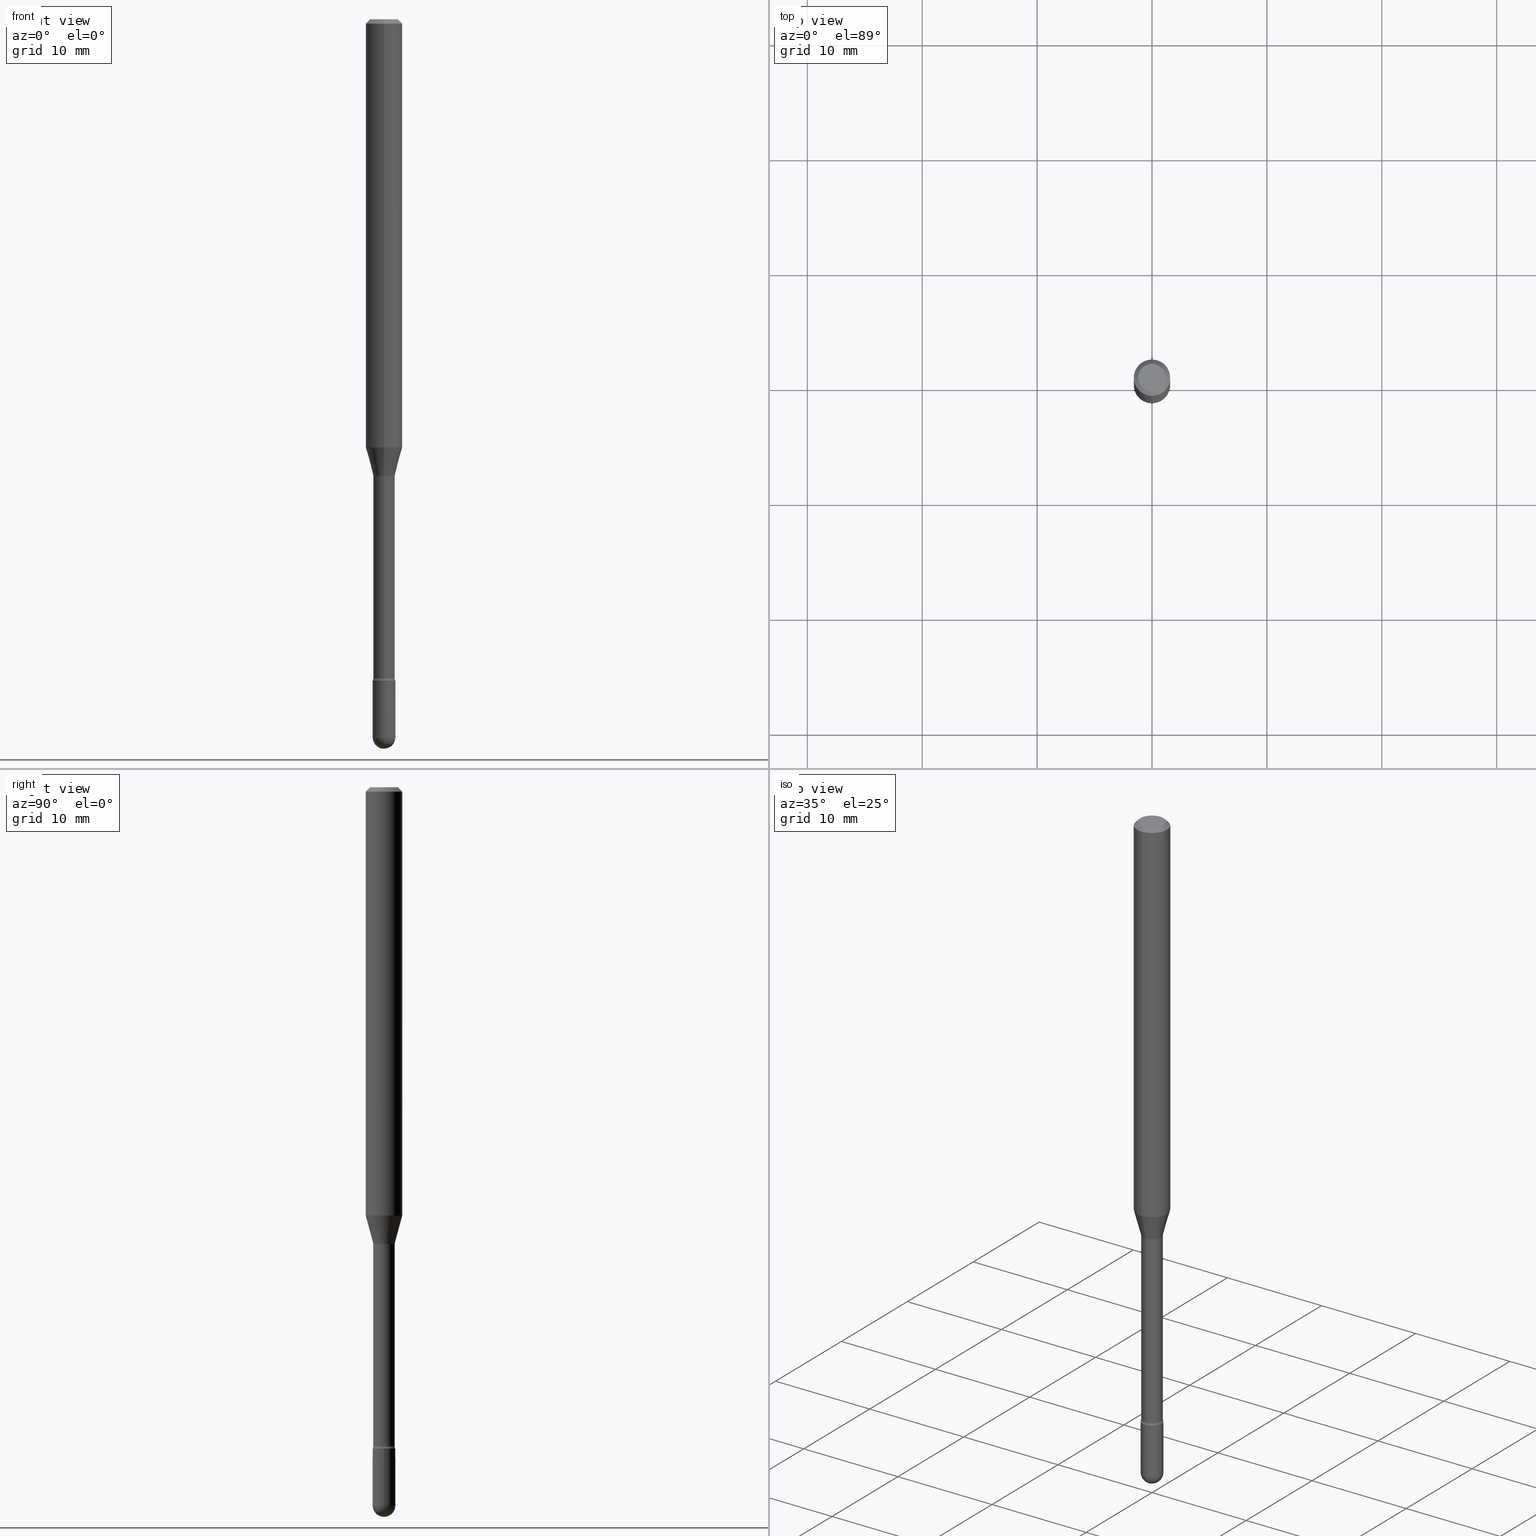
[diagram: canonical four-view strip — front | top / right | iso, engineering-drawing reading convention]
A machine part, canonical four-view strip (front | top / right | iso — engineering-drawing reading convention). The complete STEP part file that produces these views, byte-faithful:
ISO-10303-21;
HEADER;
FILE_DESCRIPTION (( 'STEP AP203' ),
    '1' );
FILE_NAME ('03741.STEP',
    '2024-04-09T20:18:41',
    ( '' ),
    ( '' ),
    'SwSTEP 2.0',
    'SolidWorks 2023',
    '' );
FILE_SCHEMA (( 'CONFIG_CONTROL_DESIGN' ));
ENDSEC;

DATA;
#1 = DIRECTION ( 'NONE',  ( -2.445468806185136597E-29, 3.491481338843145583E-15, 1.000000000000000000 ) ) ;
#2 = PRODUCT ( '03741', '03741', '', ( #494 ) ) ;
#3 = EDGE_LOOP ( 'NONE', ( #380, #106, #82, #499 ) ) ;
#4 = EDGE_CURVE ( 'NONE', #139, #440, #284, .T. ) ;
#5 = DIRECTION ( 'NONE',  ( -6.982962677686265922E-15, -1.000000000000000000, 4.370956789862821150E-15 ) ) ;
#6 = EDGE_LOOP ( 'NONE', ( #399, #476, #140, #217 ) ) ;
#7 = DIRECTION ( 'NONE',  ( 1.000000000000000000, -6.982962677686265922E-15, 4.883557194083112340E-29 ) ) ;
#8 = CIRCLE ( 'NONE', #369, 0.04749999999999999362 ) ;
#9 = CIRCLE ( 'NONE', #323, 0.03900000000000016648 ) ;
#10 = VERTEX_POINT ( 'NONE', #301 ) ;
#11 = DIRECTION ( 'NONE',  ( -6.982962677686265922E-15, -1.000000000000000000, 3.483106191921935554E-15 ) ) ;
#12 = CARTESIAN_POINT ( 'NONE',  ( -3.606700223024410249E-16, -0.05165000000000796038, -2.257939137763241177 ) ) ;
#13 = FACE_OUTER_BOUND ( 'NONE', #408, .T. ) ;
#14 = ADVANCED_FACE ( 'NONE', ( #445 ), #103, .F. ) ;
#15 = DIRECTION ( 'NONE',  ( -6.982962677686265133E-15, -1.000000000000000000, 0.000000000000000000 ) ) ;
#16 = AXIS2_PLACEMENT_3D ( 'NONE', #297, #475, #559 ) ;
#17 = AXIS2_PLACEMENT_3D ( 'NONE', #205, #462, #36 ) ;
#18 = FACE_OUTER_BOUND ( 'NONE', #220, .T. ) ;
#19 = CARTESIAN_POINT ( 'NONE',  ( 6.115339589726740991E-29, -8.726315285849526900E-15, -2.500000000000000000 ) ) ;
#20 = DATE_TIME_ROLE ( 'creation_date' ) ;
#21 = DIRECTION ( 'NONE',  ( -6.982962677686266711E-15, -1.000000000000000000, 3.491526199098709507E-15 ) ) ;
#22 = ADVANCED_FACE ( 'NONE', ( #490 ), #367, .F. ) ;
#23 = DIRECTION ( 'NONE',  ( -2.445437480436105303E-29, 3.491526199098709507E-15, 1.000000000000000000 ) ) ;
#24 = VECTOR ( 'NONE', #52, 39.37007874015748143 ) ;
#25 = AXIS2_PLACEMENT_3D ( 'NONE', #81, #353, #40 ) ;
#26 = CARTESIAN_POINT ( 'NONE',  ( 4.364351673553919652E-16, 0.06249999999999995143, -0.01500000000000030129 ) ) ;
#27 = EDGE_CURVE ( 'NONE', #79, #542, #442, .T. ) ;
#28 = ORIENTED_EDGE ( 'NONE', *, *, #85, .T. ) ;
#29 = CARTESIAN_POINT ( 'NONE',  ( -1.169113584055446105E-44, 1.669184350826100908E-30, 4.780733988912460139E-16 ) ) ;
#30 = CC_DESIGN_PERSON_AND_ORGANIZATION_ASSIGNMENT ( #426, #67, ( #473 ) ) ;
#31 = MANIFOLD_SOLID_BREP ( 'Body-Move/Copy2[2]', #213 ) ;
#32 = DATE_AND_TIME ( #552, #136 ) ;
#33 = DIRECTION ( 'NONE',  ( -2.445437480436105303E-29, 3.491526199098709507E-15, 1.000000000000000000 ) ) ;
#34 = TOROIDAL_SURFACE ( 'NONE', #172, 0.05164999999999999453, 0.01500000000000001679 ) ;
#35 = FACE_OUTER_BOUND ( 'NONE', #562, .T. ) ;
#36 = DIRECTION ( 'NONE',  ( -6.982962677686266711E-15, -1.000000000000000000, 0.000000000000000000 ) ) ;
#37 = ORIENTED_EDGE ( 'NONE', *, *, #259, .T. ) ;
#38 = ORIENTED_EDGE ( 'NONE', *, *, #184, .T. ) ;
#39 = CARTESIAN_POINT ( 'NONE',  ( -3.773273898774340269E-16, -0.04749999999999999362, 8.310259324778261149E-17 ) ) ;
#40 = DIRECTION ( 'NONE',  ( 1.000000000000000000, -6.982962677686258033E-15, 0.000000000000000000 ) ) ;
#41 = VECTOR ( 'NONE', #241, 39.37007874015748143 ) ;
#42 = CC_DESIGN_PERSON_AND_ORGANIZATION_ASSIGNMENT ( #315, #227, ( #2 ) ) ;
#43 = CARTESIAN_POINT ( 'NONE',  ( 3.668156220654178413E-31, -5.237289298648092856E-17, -0.01500000000000008271 ) ) ;
#44 = CARTESIAN_POINT ( 'NONE',  ( 3.829493438681968082E-29, -5.467641997557930663E-15, -1.565974787463811246 ) ) ;
#45 = EDGE_CURVE ( 'NONE', #467, #300, #8, .T. ) ;
#46 = ORIENTED_EDGE ( 'NONE', *, *, #402, .F. ) ;
#47 = CARTESIAN_POINT ( 'NONE',  ( 6.018298732021620914E-29, -8.592535574892981353E-15, -2.460999999999999854 ) ) ;
#48 = AXIS2_PLACEMENT_3D ( 'NONE', #29, #331, #117 ) ;
#49 = ORIENTED_EDGE ( 'NONE', *, *, #252, .F. ) ;
#50 = COORDINATED_UNIVERSAL_TIME_OFFSET ( 5, 0, .BEHIND. ) ;
#51 = CARTESIAN_POINT ( 'NONE',  ( 0.000000000000000000, 0.000000000000000000, 0.000000000000000000 ) ) ;
#52 = DIRECTION ( 'NONE',  ( -2.445468806185136877E-29, 3.491481338843145188E-15, 1.000000000000000000 ) ) ;
#53 = AXIS2_PLACEMENT_3D ( 'NONE', #466, #198, #293 ) ;
#54 = ORIENTED_EDGE ( 'NONE', *, *, #142, .F. ) ;
#55 = DIRECTION ( 'NONE',  ( 2.445437480436104462E-29, -3.491526199098709901E-15, -1.000000000000000000 ) ) ;
#56 = CARTESIAN_POINT ( 'NONE',  ( -1.169113584055446105E-44, 1.669184350826100908E-30, 4.780733988912460139E-16 ) ) ;
#57 = ORIENTED_EDGE ( 'NONE', *, *, #142, .T. ) ;
#58 = APPROVAL ( #489, 'UNSPECIFIED' ) ;
#59 = CC_DESIGN_PERSON_AND_ORGANIZATION_ASSIGNMENT ( #558, #278, ( #473 ) ) ;
#60 = FACE_OUTER_BOUND ( 'NONE', #424, .T. ) ;
#61 = DIRECTION ( 'NONE',  ( -2.445437480436105303E-29, 3.491526199098709507E-15, 1.000000000000000000 ) ) ;
#62 = DESIGN_CONTEXT ( 'detailed design', #365, 'design' ) ;
#63 = SHAPE_DEFINITION_REPRESENTATION ( #309, #373 ) ;
#64 = EDGE_CURVE ( 'NONE', #139, #10, #327, .T. ) ;
#65 = DIRECTION ( 'NONE',  ( -6.982962677686265922E-15, -1.000000000000000000, 3.491526199098708718E-15 ) ) ;
#66 = CONICAL_SURFACE ( 'NONE', #17, 0.03716111260566391100, 0.2617993877991494633 ) ;
#67 = PERSON_AND_ORGANIZATION_ROLE ( 'creator' ) ;
#68 = CARTESIAN_POINT ( 'NONE',  ( 6.018298732021620914E-29, -8.592535574892981353E-15, -2.460999999999999854 ) ) ;
#69 = ADVANCED_FACE ( 'NONE', ( #453 ), #458, .T. ) ;
#70 = COORDINATED_UNIVERSAL_TIME_OFFSET ( 5, 0, .BEHIND. ) ;
#71 = ORIENTED_EDGE ( 'NONE', *, *, #372, .T. ) ;
#72 = DIRECTION ( 'NONE',  ( 1.000000000000000000, -6.982962677686282488E-15, 0.000000000000000000 ) ) ;
#73 = ORIENTED_EDGE ( 'NONE', *, *, #422, .F. ) ;
#74 = APPROVAL_STATUS ( 'not_yet_approved' ) ;
#75 = DIRECTION ( 'NONE',  ( -2.445468806185136877E-29, 3.491481338843145188E-15, 1.000000000000000000 ) ) ;
#76 = ADVANCED_FACE ( 'NONE', ( #191 ), #272, .T. ) ;
#77 = VERTEX_POINT ( 'NONE', #498 ) ;
#78 = AXIS2_PLACEMENT_3D ( 'NONE', #207, #386, #138 ) ;
#79 = VERTEX_POINT ( 'NONE', #548 ) ;
#80 = LINE ( 'NONE', #26, #41 ) ;
#81 = CARTESIAN_POINT ( 'NONE',  ( 5.541432314815520264E-29, -7.911696713818568140E-15, -2.266000000000000014 ) ) ;
#82 = ORIENTED_EDGE ( 'NONE', *, *, #27, .T. ) ;
#83 = ORIENTED_EDGE ( 'NONE', *, *, #27, .F. ) ;
#84 = DIRECTION ( 'NONE',  ( 1.000000000000000000, -6.982962677686258033E-15, 0.000000000000000000 ) ) ;
#85 = EDGE_CURVE ( 'NONE', #152, #393, #277, .T. ) ;
#86 = ORIENTED_EDGE ( 'NONE', *, *, #477, .T. ) ;
#87 = CIRCLE ( 'NONE', #305, 0.06250000000000000000 ) ;
#88 = DIRECTION ( 'NONE',  ( 2.445437480436105303E-29, -3.491526199098709507E-15, -1.000000000000000000 ) ) ;
#89 = DIRECTION ( 'NONE',  ( -2.445437480436105303E-29, 3.491526199098709507E-15, 1.000000000000000000 ) ) ;
#90 = PERSON ( 'UNSPECIFIED', 'UNSPECIFIED', 'UNSPECIFIED', ('UNSPECIFIED'), ('UNSPECIFIED'), ('UNSPECIFIED') ) ;
#91 = CARTESIAN_POINT ( 'NONE',  ( 6.018298732021620914E-29, -8.592535574892981353E-15, -2.460999999999999854 ) ) ;
#92 = UNCERTAINTY_MEASURE_WITH_UNIT (LENGTH_MEASURE( 1.000000000000000082E-05 ), #368, 'distance_accuracy_value', 'NONE');
#93 = PERSON_AND_ORGANIZATION ( #90, #125 ) ;
#94 = VECTOR ( 'NONE', #449, 39.37007874015748143 ) ;
#95 = AXIS2_PLACEMENT_3D ( 'NONE', #264, #448, #223 ) ;
#96 = DIRECTION ( 'NONE',  ( -2.445437480436105303E-29, 3.491526199098709507E-15, 1.000000000000000000 ) ) ;
#97 = CYLINDRICAL_SURFACE ( 'NONE', #460, 0.03665000000000003672 ) ;
#98 = ADVANCED_FACE ( 'NONE', ( #13 ), #97, .T. ) ;
#99 = DIRECTION ( 'NONE',  ( -1.000000000000000000, 6.982962677686265922E-15, -4.883557194083112340E-29 ) ) ;
#100 = ORIENTED_EDGE ( 'NONE', *, *, #4, .F. ) ;
#101 = CARTESIAN_POINT ( 'NONE',  ( -2.594946623866095287E-16, -0.03716111260566937191, -1.562092501787273768 ) ) ;
#102 = DIRECTION ( 'NONE',  ( -2.445437480436105303E-29, 3.491526199098709507E-15, 1.000000000000000000 ) ) ;
#103 = TOROIDAL_SURFACE ( 'NONE', #294, 0.05164999999999999453, 0.01500000000000001679 ) ;
#104 = ORIENTED_EDGE ( 'NONE', *, *, #143, .T. ) ;
#105 = CIRCLE ( 'NONE', #332, 0.03716111260566391100 ) ;
#106 = ORIENTED_EDGE ( 'NONE', *, *, #150, .T. ) ;
#107 = APPLICATION_PROTOCOL_DEFINITION ( 'international standard', 'config_control_design', 1994, #365 ) ;
#108 = CARTESIAN_POINT ( 'NONE',  ( 2.604139126560769297E-16, 0.03665000000000003672, 3.501089636942781913E-16 ) ) ;
#109 = EDGE_CURVE ( 'NONE', #77, #175, #508, .T. ) ;
#110 = DIRECTION ( 'NONE',  ( -2.445437480436105023E-29, 3.491526199098709901E-15, 1.000000000000000000 ) ) ;
#111 = CARTESIAN_POINT ( 'NONE',  ( 3.829542494015149710E-29, -5.467571747528758613E-15, -1.565974787463811246 ) ) ;
#112 = APPROVAL_ROLE ( '' ) ;
#113 = FACE_OUTER_BOUND ( 'NONE', #463, .T. ) ;
#114 = ORIENTED_EDGE ( 'NONE', *, *, #422, .T. ) ;
#115 = CIRCLE ( 'NONE', #433, 0.01500000000000001853 ) ;
#116 = APPROVAL_ROLE ( '' ) ;
#117 = DIRECTION ( 'NONE',  ( -6.982962677686265922E-15, -1.000000000000000000, 3.491526199098708718E-15 ) ) ;
#118 = VERTEX_POINT ( 'NONE', #19 ) ;
#119 = VERTEX_POINT ( 'NONE', #279 ) ;
#120 = DIRECTION ( 'NONE',  ( 1.000000000000000000, -6.982962677686282488E-15, 0.000000000000000000 ) ) ;
#121 = EDGE_CURVE ( 'NONE', #542, #79, #338, .T. ) ;
#122 = ORIENTED_EDGE ( 'NONE', *, *, #402, .T. ) ;
#123 = FACE_OUTER_BOUND ( 'NONE', #307, .T. ) ;
#124 = CIRCLE ( 'NONE', #194, 0.01500000000000001853 ) ;
#125 = ORGANIZATION ( 'UNSPECIFIED', 'UNSPECIFIED', '' ) ;
#126 = LINE ( 'NONE', #247, #482 ) ;
#127 = APPLICATION_CONTEXT ( 'configuration controlled 3d designs of mechanical parts and assemblies' ) ;
#128 = VERTEX_POINT ( 'NONE', #183 ) ;
#129 = CARTESIAN_POINT ( 'NONE',  ( 2.640455861472139653E-16, 0.03716111260565845703, -1.562092501787273768 ) ) ;
#130 = APPROVAL ( #469, 'UNSPECIFIED' ) ;
#131 = DIRECTION ( 'NONE',  ( -1.807323732225324223E-15, -0.2588190451025173533, 0.9659258262890690894 ) ) ;
#132 = ORIENTED_EDGE ( 'NONE', *, *, #159, .T. ) ;
#133 = ORIENTED_EDGE ( 'NONE', *, *, #450, .T. ) ;
#134 = AXIS2_PLACEMENT_3D ( 'NONE', #182, #432, #261 ) ;
#135 = DIRECTION ( 'NONE',  ( 1.839019923739594399E-15, 0.2588190451025241257, 0.9659258262890673130 ) ) ;
#136 = LOCAL_TIME ( 16, 18, 41.00000000000000000, #70 ) ;
#137 = ADVANCED_FACE ( 'NONE', ( #355 ), #536, .T. ) ;
#138 = DIRECTION ( 'NONE',  ( -6.982962677686265922E-15, -1.000000000000000000, 0.000000000000000000 ) ) ;
#139 = VERTEX_POINT ( 'NONE', #314 ) ;
#140 = ORIENTED_EDGE ( 'NONE', *, *, #344, .F. ) ;
#141 = CARTESIAN_POINT ( 'NONE',  ( 3.819999551778803066E-29, -5.454086895405913122E-15, -1.562092501787273768 ) ) ;
#142 = EDGE_CURVE ( 'NONE', #119, #565, #154, .T. ) ;
#143 = EDGE_CURVE ( 'NONE', #440, #413, #234, .T. ) ;
#144 =( LENGTH_UNIT ( ) NAMED_UNIT ( * ) SI_UNIT ( $, .METRE. ) );
#145 = VECTOR ( 'NONE', #412, 39.37007874015748143 ) ;
#146 = VECTOR ( 'NONE', #254, 39.37007874015748143 ) ;
#147 = ORIENTED_EDGE ( 'NONE', *, *, #391, .T. ) ;
#148 = DIRECTION ( 'NONE',  ( -2.445437480436105303E-29, 3.491526199098709507E-15, 1.000000000000000000 ) ) ;
#149 = ORIENTED_EDGE ( 'NONE', *, *, #497, .F. ) ;
#150 = EDGE_CURVE ( 'NONE', #440, #79, #115, .T. ) ;
#151 = FACE_OUTER_BOUND ( 'NONE', #292, .T. ) ;
#152 = VERTEX_POINT ( 'NONE', #539 ) ;
#153 = DIRECTION ( 'NONE',  ( -6.982962677686265922E-15, -1.000000000000000000, 3.491526199098709901E-15 ) ) ;
#154 = CIRCLE ( 'NONE', #390, 0.03716111260566391100 ) ;
#155 = CIRCLE ( 'NONE', #370, 0.03900000000000016648 ) ;
#156 = APPROVAL_PERSON_ORGANIZATION ( #190, #130, #112 ) ;
#157 = APPROVAL_ROLE ( '' ) ;
#158 = DIRECTION ( 'NONE',  ( -6.982962677686264344E-15, -1.000000000000000000, 0.000000000000000000 ) ) ;
#159 = EDGE_CURVE ( 'NONE', #413, #10, #186, .T. ) ;
#160 = CARTESIAN_POINT ( 'NONE',  ( 5.541432314815520264E-29, -7.911696713818568140E-15, -2.266000000000000014 ) ) ;
#161 = PERSON_AND_ORGANIZATION ( #90, #125 ) ;
#162 = AXIS2_PLACEMENT_3D ( 'NONE', #169, #514, #245 ) ;
#163 = AXIS2_PLACEMENT_3D ( 'NONE', #236, #420, #517 ) ;
#164 = ADVANCED_FACE ( 'NONE', ( #151 ), #256, .T. ) ;
#165 = ADVANCED_FACE ( 'NONE', ( #337 ), #560, .T. ) ;
#166 = CARTESIAN_POINT ( 'NONE',  ( 6.018298732021620914E-29, -8.592535574892981353E-15, -2.460999999999999854 ) ) ;
#167 = CARTESIAN_POINT ( 'NONE',  ( -1.169113584055446105E-44, 1.669184350826100908E-30, 4.780733988912460139E-16 ) ) ;
#168 = PRODUCT_DEFINITION ( 'UNKNOWN', '', #473, #62 ) ;
#169 = CARTESIAN_POINT ( 'NONE',  ( 2.023325067251522165E-45, -2.889274369093283992E-31, -8.274490120940608760E-17 ) ) ;
#170 = ORIENTED_EDGE ( 'NONE', *, *, #252, .T. ) ;
#171 = CLOSED_SHELL ( 'NONE', ( #224, #76, #275, #281, #137 ) ) ;
#172 = AXIS2_PLACEMENT_3D ( 'NONE', #173, #258, #523 ) ;
#173 = CARTESIAN_POINT ( 'NONE',  ( 3.829542494015149710E-29, -5.467571747528758613E-15, -1.565974787463811246 ) ) ;
#174 = DIRECTION ( 'NONE',  ( 1.000000000000000000, -6.982962677686282488E-15, 0.000000000000000000 ) ) ;
#175 = VERTEX_POINT ( 'NONE', #387 ) ;
#176 = ORIENTED_EDGE ( 'NONE', *, *, #45, .T. ) ;
#177 = CARTESIAN_POINT ( 'NONE',  ( 2.687627898013134923E-16, 0.03664999999999218189, -2.257939137763241177 ) ) ;
#178 = AXIS2_PLACEMENT_3D ( 'NONE', #311, #88, #396 ) ;
#179 = DIRECTION ( 'NONE',  ( 6.982962677686266711E-15, 1.000000000000000000, 0.000000000000000000 ) ) ;
#180 =( GEOMETRIC_REPRESENTATION_CONTEXT ( 3 ) GLOBAL_UNCERTAINTY_ASSIGNED_CONTEXT ( ( #92 ) ) GLOBAL_UNIT_ASSIGNED_CONTEXT ( ( #368, #543, #406 ) ) REPRESENTATION_CONTEXT ( 'NONE', 'WORKASPACE' ) );
#181 = EDGE_CURVE ( 'NONE', #300, #467, #409, .T. ) ;
#182 = CARTESIAN_POINT ( 'NONE',  ( 5.521648996029813535E-29, -7.883653655470708131E-15, -2.257939137763241177 ) ) ;
#183 = CARTESIAN_POINT ( 'NONE',  ( -2.771116669463794638E-16, -0.03900000000000868744, -2.460999999999999854 ) ) ;
#184 = EDGE_CURVE ( 'NONE', #364, #219, #221, .T. ) ;
#185 = APPROVAL_DATE_TIME ( #188, #58 ) ;
#186 = CIRCLE ( 'NONE', #512, 0.03665000000000000202 ) ;
#187 = CARTESIAN_POINT ( 'NONE',  ( 3.668156220654178413E-31, -5.237289298648092856E-17, -0.01500000000000008271 ) ) ;
#188 = DATE_AND_TIME ( #411, #492 ) ;
#189 = CARTESIAN_POINT ( 'NONE',  ( 5.541361330668214536E-29, -7.911798367157676566E-15, -2.266000000000000014 ) ) ;
#190 = PERSON_AND_ORGANIZATION ( #90, #125 ) ;
#191 = FACE_OUTER_BOUND ( 'NONE', #436, .T. ) ;
#192 = DIRECTION ( 'NONE',  ( -6.982962677686266711E-15, -1.000000000000000000, 0.000000000000000000 ) ) ;
#193 = CARTESIAN_POINT ( 'NONE',  ( -2.559255821372018895E-16, -0.03665000000000003672, 6.060378340882139352E-16 ) ) ;
#194 = AXIS2_PLACEMENT_3D ( 'NONE', #12, #225, #454 ) ;
#195 = VERTEX_POINT ( 'NONE', #520 ) ;
#196 = PLANE ( 'NONE',  #392 ) ;
#197 = ORIENTED_EDGE ( 'NONE', *, *, #121, .T. ) ;
#198 = DIRECTION ( 'NONE',  ( 1.000000000000000000, -7.105427357601001070E-15, 4.926316057921766323E-29 ) ) ;
#199 = ADVANCED_FACE ( 'NONE', ( #123 ), #66, .T. ) ;
#200 = SPHERICAL_SURFACE ( 'NONE', #556, 0.03900000000000016648 ) ;
#201 = CIRCLE ( 'NONE', #271, 0.03900000000000000688 ) ;
#202 = AXIS2_PLACEMENT_3D ( 'NONE', #354, #535, #366 ) ;
#203 = DATE_AND_TIME ( #511, #249 ) ;
#204 = EDGE_CURVE ( 'NONE', #152, #195, #547, .T. ) ;
#205 = CARTESIAN_POINT ( 'NONE',  ( 3.819999551778803066E-29, -5.454086895405913122E-15, -1.562092501787273768 ) ) ;
#206 = MANIFOLD_SOLID_BREP ( 'Body-Move/Copy2[1]', #171 ) ;
#207 = CARTESIAN_POINT ( 'NONE',  ( 5.521648996029813535E-29, -7.883653655470708131E-15, -2.257939137763241177 ) ) ;
#208 = EDGE_CURVE ( 'NONE', #219, #262, #126, .T. ) ;
#209 = CYLINDRICAL_SURFACE ( 'NONE', #48, 0.06250000000000000000 ) ;
#210 = FACE_OUTER_BOUND ( 'NONE', #3, .T. ) ;
#211 = EDGE_LOOP ( 'NONE', ( #122, #298 ) ) ;
#212 = EDGE_CURVE ( 'NONE', #393, #289, #527, .T. ) ;
#213 = CLOSED_SHELL ( 'NONE', ( #14, #165, #439, #164, #69, #506, #199, #282, #485, #518, #22, #546, #98, #474 ) ) ;
#214 = EDGE_LOOP ( 'NONE', ( #351, #83 ) ) ;
#215 = AXIS2_PLACEMENT_3D ( 'NONE', #478, #441, #84 ) ;
#216 = DIRECTION ( 'NONE',  ( -2.445437480436105303E-29, 3.491526199098709507E-15, 1.000000000000000000 ) ) ;
#217 = ORIENTED_EDGE ( 'NONE', *, *, #477, .F. ) ;
#218 = CARTESIAN_POINT ( 'NONE',  ( -2.594946623866095287E-16, -0.03716111260566937191, -1.562092501787273768 ) ) ;
#219 = VERTEX_POINT ( 'NONE', #553 ) ;
#220 = EDGE_LOOP ( 'NONE', ( #430, #176 ) ) ;
#221 = CIRCLE ( 'NONE', #285, 0.03900000000000000688 ) ;
#222 = CARTESIAN_POINT ( 'NONE',  ( 3.588744273923887991E-29, -5.123907175920180791E-15, -1.467526486624344928 ) ) ;
#223 = DIRECTION ( 'NONE',  ( -6.982962677686265133E-15, -1.000000000000000000, 3.491526199098709112E-15 ) ) ;
#224 = ADVANCED_FACE ( 'NONE', ( #35 ), #335, .T. ) ;
#225 = DIRECTION ( 'NONE',  ( -1.000000000000000000, 6.982962677686265922E-15, -4.883557194083112901E-29 ) ) ;
#226 = DIRECTION ( 'NONE',  ( 7.105427357601001859E-15, 1.000000000000000000, 0.000000000000000000 ) ) ;
#227 = PERSON_AND_ORGANIZATION_ROLE ( 'design_owner' ) ;
#228 = AXIS2_PLACEMENT_3D ( 'NONE', #418, #324, #268 ) ;
#229 = CIRCLE ( 'NONE', #357, 0.03900000000000000688 ) ;
#230 = DIRECTION ( 'NONE',  ( -6.982962677686264344E-15, -1.000000000000000000, 0.000000000000000000 ) ) ;
#231 = ORIENTED_EDGE ( 'NONE', *, *, #242, .T. ) ;
#232 = DIRECTION ( 'NONE',  ( -2.445437480436105303E-29, 3.491526199098709507E-15, 1.000000000000000000 ) ) ;
#233 = ORIENTED_EDGE ( 'NONE', *, *, #345, .T. ) ;
#234 = LINE ( 'NONE', #108, #94 ) ;
#235 = ORIENTED_EDGE ( 'NONE', *, *, #344, .T. ) ;
#236 = CARTESIAN_POINT ( 'NONE',  ( -3.606700223024573445E-16, -0.05165000000000546237, -1.565974787463811024 ) ) ;
#237 = AXIS2_PLACEMENT_3D ( 'NONE', #416, #360, #65 ) ;
#238 = CIRCLE ( 'NONE', #503, 0.06250000000000000000 ) ;
#239 = ORIENTED_EDGE ( 'NONE', *, *, #348, .F. ) ;
#240 = DATE_AND_TIME ( #382, #452 ) ;
#241 = DIRECTION ( 'NONE',  ( 4.937700262164548042E-15, 0.7071067811865451302, -0.7071067811865499042 ) ) ;
#242 = EDGE_CURVE ( 'NONE', #565, #10, #333, .T. ) ;
#243 = DIMENSIONAL_EXPONENTS ( 1.000000000000000000, 0.000000000000000000, 0.000000000000000000, 0.000000000000000000, 0.000000000000000000, 0.000000000000000000, 0.000000000000000000 ) ;
#244 = PERSON_AND_ORGANIZATION ( #90, #125 ) ;
#245 = DIRECTION ( 'NONE',  ( -6.982962677686266711E-15, -1.000000000000000000, 3.491526199098709507E-15 ) ) ;
#246 = CC_DESIGN_DATE_AND_TIME_ASSIGNMENT ( #203, #464, ( #483 ) ) ;
#247 = CARTESIAN_POINT ( 'NONE',  ( -0.03899999999999999994, 2.771116669464390721E-16, -1.918384685199413078E-30 ) ) ;
#248 = VECTOR ( 'NONE', #135, 39.37007874015748854 ) ;
#249 = LOCAL_TIME ( 16, 18, 41.00000000000000000, #287 ) ;
#250 = ORIENTED_EDGE ( 'NONE', *, *, #348, .T. ) ;
#251 = CARTESIAN_POINT ( 'NONE',  ( 3.668156220654178413E-31, -5.237289298648092856E-17, -0.01500000000000008271 ) ) ;
#252 = EDGE_CURVE ( 'NONE', #128, #77, #229, .T. ) ;
#253 = ORIENTED_EDGE ( 'NONE', *, *, #372, .F. ) ;
#254 = DIRECTION ( 'NONE',  ( -4.851104656540964275E-15, -0.7071067811865500152, -0.7071067811865450192 ) ) ;
#255 = DIRECTION ( 'NONE',  ( -7.105427357601000281E-15, -1.000000000000000000, 0.000000000000000000 ) ) ;
#256 = CONICAL_SURFACE ( 'NONE', #330, 0.06250000000000000000, 0.7853981633974483900 ) ;
#257 = CIRCLE ( 'NONE', #410, 0.03665000000000000202 ) ;
#258 = DIRECTION ( 'NONE',  ( -2.445437480436105303E-29, 3.491526199098709507E-15, 1.000000000000000000 ) ) ;
#259 = EDGE_CURVE ( 'NONE', #119, #413, #295, .T. ) ;
#260 = CARTESIAN_POINT ( 'NONE',  ( 3.840629472727447874E-16, 0.04749999999999999362, -2.485923956665947867E-16 ) ) ;
#261 = DIRECTION ( 'NONE',  ( -6.982962677686265922E-15, -1.000000000000000000, 0.000000000000000000 ) ) ;
#262 = VERTEX_POINT ( 'NONE', #470 ) ;
#263 = VECTOR ( 'NONE', #131, 39.37007874015748854 ) ;
#264 = CARTESIAN_POINT ( 'NONE',  ( 5.521719727664570921E-29, -7.883552363743941400E-15, -2.257939137763241622 ) ) ;
#265 = DIRECTION ( 'NONE',  ( 6.982962677686265922E-15, 1.000000000000000000, -3.491526199098709901E-15 ) ) ;
#266 = EDGE_CURVE ( 'NONE', #300, #393, #80, .T. ) ;
#267 = CARTESIAN_POINT ( 'NONE',  ( 2.023325067251522165E-45, -2.889274369093283992E-31, -8.274490120940608760E-17 ) ) ;
#268 = DIRECTION ( 'NONE',  ( -6.982962677686265922E-15, -1.000000000000000000, 3.491526199098709901E-15 ) ) ;
#269 = ORIENTED_EDGE ( 'NONE', *, *, #302, .F. ) ;
#270 = PERSON_AND_ORGANIZATION ( #90, #125 ) ;
#271 = AXIS2_PLACEMENT_3D ( 'NONE', #47, #1, #174 ) ;
#272 = SPHERICAL_SURFACE ( 'NONE', #400, 0.03900000000000016648 ) ;
#273 = LOCAL_TIME ( 16, 18, 41.00000000000000000, #538 ) ;
#274 = ORIENTED_EDGE ( 'NONE', *, *, #446, .F. ) ;
#275 = ADVANCED_FACE ( 'NONE', ( #377 ), #196, .T. ) ;
#276 = CARTESIAN_POINT ( 'NONE',  ( -2.723355444297090986E-16, -0.03900000000000791722, -2.266000000000000014 ) ) ;
#277 = LINE ( 'NONE', #405, #145 ) ;
#278 = PERSON_AND_ORGANIZATION_ROLE ( 'design_supplier' ) ;
#279 = CARTESIAN_POINT ( 'NONE',  ( 3.540673979986563113E-16, 0.03716111260565845703, -1.562092501787273768 ) ) ;
#280 = APPROVAL_DATE_TIME ( #32, #130 ) ;
#281 = ADVANCED_FACE ( 'NONE', ( #113 ), #200, .T. ) ;
#282 = ADVANCED_FACE ( 'NONE', ( #557 ), #209, .T. ) ;
#283 = CARTESIAN_POINT ( 'NONE',  ( 6.018298732021620914E-29, -8.592535574892981353E-15, -2.460999999999999854 ) ) ;
#284 = CIRCLE ( 'NONE', #78, 0.03665000000000006447 ) ;
#285 = AXIS2_PLACEMENT_3D ( 'NONE', #166, #291, #72 ) ;
#286 = ORIENTED_EDGE ( 'NONE', *, *, #181, .F. ) ;
#287 = COORDINATED_UNIVERSAL_TIME_OFFSET ( 5, 0, .BEHIND. ) ;
#288 = CARTESIAN_POINT ( 'NONE',  ( -4.364351673553912750E-16, -0.06250000000000005551, -0.01499999999999986587 ) ) ;
#289 = VERTEX_POINT ( 'NONE', #288 ) ;
#290 = SECURITY_CLASSIFICATION_LEVEL ( 'unclassified' ) ;
#291 = DIRECTION ( 'NONE',  ( -2.445468806185136597E-29, 3.491481338843145583E-15, 1.000000000000000000 ) ) ;
#292 = EDGE_LOOP ( 'NONE', ( #361, #133, #71, #516 ) ) ;
#293 = DIRECTION ( 'NONE',  ( 7.105427357600998703E-15, 1.000000000000000000, 0.000000000000000000 ) ) ;
#294 = AXIS2_PLACEMENT_3D ( 'NONE', #111, #480, #551 ) ;
#295 = CIRCLE ( 'NONE', #53, 0.01500000000000001853 ) ;
#296 = APPROVAL_PERSON_ORGANIZATION ( #244, #414, #116 ) ;
#297 = CARTESIAN_POINT ( 'NONE',  ( 0.000000000000000000, 0.000000000000000000, 0.000000000000000000 ) ) ;
#298 = ORIENTED_EDGE ( 'NONE', *, *, #312, .T. ) ;
#299 = DIRECTION ( 'NONE',  ( -6.982962677686266711E-15, -1.000000000000000000, 0.000000000000000000 ) ) ;
#300 = VERTEX_POINT ( 'NONE', #260 ) ;
#301 = CARTESIAN_POINT ( 'NONE',  ( -2.559255821371633339E-16, -0.03665000000000546987, -1.565974787463811246 ) ) ;
#302 = EDGE_CURVE ( 'NONE', #565, #119, #105, .T. ) ;
#303 = FACE_OUTER_BOUND ( 'NONE', #321, .T. ) ;
#304 = AXIS2_PLACEMENT_3D ( 'NONE', #167, #375, #428 ) ;
#305 = AXIS2_PLACEMENT_3D ( 'NONE', #222, #403, #5 ) ;
#306 = CARTESIAN_POINT ( 'NONE',  ( 6.018298732021620914E-29, -8.592535574892981353E-15, -2.460999999999999854 ) ) ;
#307 = EDGE_LOOP ( 'NONE', ( #374, #57, #86, #397 ) ) ;
#308 = ORIENTED_EDGE ( 'NONE', *, *, #450, .F. ) ;
#309 = PRODUCT_DEFINITION_SHAPE ( 'NONE', 'NONE',  #168 ) ;
#310 = DIRECTION ( 'NONE',  ( -2.445437480436105303E-29, 3.491526199098709507E-15, 1.000000000000000000 ) ) ;
#311 = CARTESIAN_POINT ( 'NONE',  ( 3.668156220654178413E-31, -5.237289298648092856E-17, -0.01500000000000008271 ) ) ;
#312 = EDGE_CURVE ( 'NONE', #262, #175, #419, .T. ) ;
#313 = VECTOR ( 'NONE', #358, 39.37007874015748143 ) ;
#314 = CARTESIAN_POINT ( 'NONE',  ( -2.559255821371468665E-16, -0.03665000000000794705, -2.257939137763241177 ) ) ;
#315 = PERSON_AND_ORGANIZATION ( #90, #125 ) ;
#316 = ORIENTED_EDGE ( 'NONE', *, *, #109, .T. ) ;
#317 = CARTESIAN_POINT ( 'NONE',  ( 3.829493438681968082E-29, -5.467641997557930663E-15, -1.565974787463811246 ) ) ;
#318 = CARTESIAN_POINT ( 'NONE',  ( -4.364351673553916201E-16, -0.06250000000000000000, 6.962937863349153827E-16 ) ) ;
#319 = CARTESIAN_POINT ( 'NONE',  ( 0.03899999999999999994, -2.723355444297643682E-16, 1.901708942560414931E-30 ) ) ;
#320 = ORIENTED_EDGE ( 'NONE', *, *, #446, .T. ) ;
#321 = EDGE_LOOP ( 'NONE', ( #308, #286, #465, #383 ) ) ;
#322 = APPLICATION_PROTOCOL_DEFINITION ( 'international standard', 'config_control_design', 1994, #127 ) ;
#323 = AXIS2_PLACEMENT_3D ( 'NONE', #306, #7, #179 ) ;
#324 = DIRECTION ( 'NONE',  ( -2.445437480436104462E-29, 3.491526199098709901E-15, 1.000000000000000000 ) ) ;
#325 = CC_DESIGN_DATE_AND_TIME_ASSIGNMENT ( #415, #20, ( #168 ) ) ;
#326 = EDGE_LOOP ( 'NONE', ( #519, #104, #73, #389 ) ) ;
#327 = LINE ( 'NONE', #193, #502 ) ;
#328 = DIRECTION ( 'NONE',  ( 1.000000000000000000, -6.982962677686265922E-15, 4.876176775795935793E-29 ) ) ;
#329 = PERSON_AND_ORGANIZATION_ROLE ( 'classification_officer' ) ;
#330 = AXIS2_PLACEMENT_3D ( 'NONE', #187, #336, #471 ) ;
#331 = DIRECTION ( 'NONE',  ( -2.445437480436105303E-29, 3.491526199098709507E-15, 1.000000000000000000 ) ) ;
#332 = AXIS2_PLACEMENT_3D ( 'NONE', #484, #487, #299 ) ;
#333 = CIRCLE ( 'NONE', #163, 0.01500000000000001853 ) ;
#334 = ORIENTED_EDGE ( 'NONE', *, *, #204, .T. ) ;
#335 = CYLINDRICAL_SURFACE ( 'NONE', #16, 0.03899999999999999994 ) ;
#336 = DIRECTION ( 'NONE',  ( 2.445437480436105303E-29, -3.491526199098709507E-15, -1.000000000000000000 ) ) ;
#337 = FACE_OUTER_BOUND ( 'NONE', #326, .T. ) ;
#338 = CIRCLE ( 'NONE', #555, 0.03899999999999999994 ) ;
#339 = AXIS2_PLACEMENT_3D ( 'NONE', #398, #310, #530 ) ;
#340 = CC_DESIGN_APPROVAL ( #414, ( #483 ) ) ;
#341 = ORIENTED_EDGE ( 'NONE', *, *, #259, .F. ) ;
#342 = ORIENTED_EDGE ( 'NONE', *, *, #109, .F. ) ;
#343 = CARTESIAN_POINT ( 'NONE',  ( 2.604139126561321500E-16, 0.03664999999999453417, -1.565974787463811246 ) ) ;
#344 = EDGE_CURVE ( 'NONE', #195, #152, #87, .T. ) ;
#345 = EDGE_CURVE ( 'NONE', #219, #128, #513, .T. ) ;
#346 = CARTESIAN_POINT ( 'NONE',  ( 4.440892098500987066E-16, 0.06249999999999995143, -0.01500000000000030129 ) ) ;
#347 = FACE_OUTER_BOUND ( 'NONE', #479, .T. ) ;
#348 = EDGE_CURVE ( 'NONE', #118, #128, #155, .T. ) ;
#349 = CONICAL_SURFACE ( 'NONE', #178, 0.06250000000000000000, 0.7853981633974483900 ) ;
#350 = APPROVAL_PERSON_ORGANIZATION ( #270, #58, #157 ) ;
#351 = ORIENTED_EDGE ( 'NONE', *, *, #121, .F. ) ;
#352 = FACE_OUTER_BOUND ( 'NONE', #6, .T. ) ;
#353 = DIRECTION ( 'NONE',  ( -2.445468806185136597E-29, 3.491481338843145583E-15, 1.000000000000000000 ) ) ;
#354 = CARTESIAN_POINT ( 'NONE',  ( 0.000000000000000000, 0.000000000000000000, 0.000000000000000000 ) ) ;
#355 = FACE_OUTER_BOUND ( 'NONE', #554, .T. ) ;
#356 = AXIS2_PLACEMENT_3D ( 'NONE', #51, #363, #447 ) ;
#357 = AXIS2_PLACEMENT_3D ( 'NONE', #68, #549, #120 ) ;
#358 = DIRECTION ( 'NONE',  ( -2.445437480436105023E-29, 3.491526199098709901E-15, 1.000000000000000000 ) ) ;
#359 = CC_DESIGN_APPROVAL ( #58, ( #168 ) ) ;
#360 = DIRECTION ( 'NONE',  ( -2.445437480436105303E-29, 3.491526199098709507E-15, 1.000000000000000000 ) ) ;
#361 = ORIENTED_EDGE ( 'NONE', *, *, #45, .F. ) ;
#362 = PERSON_AND_ORGANIZATION_ROLE ( 'creator' ) ;
#363 = DIRECTION ( 'NONE',  ( -2.445468806185136597E-29, 3.491481338843145583E-15, 1.000000000000000000 ) ) ;
#364 = VERTEX_POINT ( 'NONE', #564 ) ;
#365 = APPLICATION_CONTEXT ( 'configuration controlled 3d designs of mechanical parts and assemblies' ) ;
#366 = DIRECTION ( 'NONE',  ( 1.000000000000000000, 0.000000000000000000, 0.000000000000000000 ) ) ;
#367 = PLANE ( 'NONE',  #228 ) ;
#368 =( CONVERSION_BASED_UNIT ( 'INCH', #417 ) LENGTH_UNIT ( ) NAMED_UNIT ( #243 ) );
#369 = AXIS2_PLACEMENT_3D ( 'NONE', #267, #102, #21 ) ;
#370 = AXIS2_PLACEMENT_3D ( 'NONE', #91, #437, #255 ) ;
#371 = DIRECTION ( 'NONE',  ( -2.445437480436105303E-29, 3.491526199098709507E-15, 1.000000000000000000 ) ) ;
#372 = EDGE_CURVE ( 'NONE', #289, #393, #238, .T. ) ;
#373 = ADVANCED_BREP_SHAPE_REPRESENTATION ( '03741', ( #206, #31, #202 ), #180 ) ;
#374 = ORIENTED_EDGE ( 'NONE', *, *, #493, .F. ) ;
#375 = DIRECTION ( 'NONE',  ( -2.445437480436105303E-29, 3.491526199098709507E-15, 1.000000000000000000 ) ) ;
#376 = PRODUCT_RELATED_PRODUCT_CATEGORY ( 'detail', '', ( #2 ) ) ;
#377 = FACE_OUTER_BOUND ( 'NONE', #211, .T. ) ;
#378 = ORIENTED_EDGE ( 'NONE', *, *, #85, .F. ) ;
#379 = DIRECTION ( 'NONE',  ( -1.000000000000000000, 6.982962677686265922E-15, -4.883557194083112340E-29 ) ) ;
#380 = ORIENTED_EDGE ( 'NONE', *, *, #391, .F. ) ;
#381 = TOROIDAL_SURFACE ( 'NONE', #339, 0.05165000000000008473, 0.01500000000000002200 ) ;
#382 = CALENDAR_DATE ( 2024, 9, 4 ) ;
#383 = ORIENTED_EDGE ( 'NONE', *, *, #212, .T. ) ;
#384 = DIRECTION ( 'NONE',  ( -6.982962677686265922E-15, -1.000000000000000000, 3.483106191921935554E-15 ) ) ;
#385 = ORIENTED_EDGE ( 'NONE', *, *, #550, .T. ) ;
#386 = DIRECTION ( 'NONE',  ( -2.445437480436105303E-29, 3.491526199098709507E-15, 1.000000000000000000 ) ) ;
#387 = CARTESIAN_POINT ( 'NONE',  ( 0.03899999999999999994, -8.184032258248332163E-15, -2.266000000000000014 ) ) ;
#388 = CARTESIAN_POINT ( 'NONE',  ( 6.018298732021620914E-29, -8.592535574892981353E-15, -2.460999999999999854 ) ) ;
#389 = ORIENTED_EDGE ( 'NONE', *, *, #64, .F. ) ;
#390 = AXIS2_PLACEMENT_3D ( 'NONE', #541, #23, #455 ) ;
#391 = EDGE_CURVE ( 'NONE', #440, #139, #537, .T. ) ;
#392 = AXIS2_PLACEMENT_3D ( 'NONE', #160, #429, #328 ) ;
#393 = VERTEX_POINT ( 'NONE', #346 ) ;
#394 = DIRECTION ( 'NONE',  ( -6.982962677686265133E-15, -1.000000000000000000, 0.000000000000000000 ) ) ;
#395 = EDGE_LOOP ( 'NONE', ( #235, #28, #253, #510 ) ) ;
#396 = DIRECTION ( 'NONE',  ( 6.982962677686265922E-15, 1.000000000000000000, -3.483106191921935554E-15 ) ) ;
#397 = ORIENTED_EDGE ( 'NONE', *, *, #204, .F. ) ;
#398 = CARTESIAN_POINT ( 'NONE',  ( 5.521719727664570921E-29, -7.883552363743941400E-15, -2.257939137763241622 ) ) ;
#399 = ORIENTED_EDGE ( 'NONE', *, *, #302, .T. ) ;
#400 = AXIS2_PLACEMENT_3D ( 'NONE', #545, #99, #505 ) ;
#401 = AXIS2_PLACEMENT_3D ( 'NONE', #388, #431, #481 ) ;
#402 = EDGE_CURVE ( 'NONE', #175, #262, #451, .T. ) ;
#403 = DIRECTION ( 'NONE',  ( -2.445437480436105303E-29, 3.491526199098709507E-15, 1.000000000000000000 ) ) ;
#404 = LINE ( 'NONE', #318, #313 ) ;
#405 = CARTESIAN_POINT ( 'NONE',  ( 4.440892098500625669E-16, 0.06250000000000000000, 2.598530114475767437E-16 ) ) ;
#406 =( NAMED_UNIT ( * ) SI_UNIT ( $, .STERADIAN. ) SOLID_ANGLE_UNIT ( ) );
#407 = CARTESIAN_POINT ( 'NONE',  ( 5.541361330668214536E-29, -7.911798367157676566E-15, -2.266000000000000014 ) ) ;
#408 = EDGE_LOOP ( 'NONE', ( #438, #147, #444, #501 ) ) ;
#409 = CIRCLE ( 'NONE', #162, 0.04749999999999999362 ) ;
#410 = AXIS2_PLACEMENT_3D ( 'NONE', #44, #216, #394 ) ;
#411 = CALENDAR_DATE ( 2024, 9, 4 ) ;
#412 = DIRECTION ( 'NONE',  ( -2.445437480436105023E-29, 3.491526199098709901E-15, 1.000000000000000000 ) ) ;
#413 = VERTEX_POINT ( 'NONE', #343 ) ;
#414 = APPROVAL ( #74, 'UNSPECIFIED' ) ;
#415 = DATE_AND_TIME ( #540, #273 ) ;
#416 = CARTESIAN_POINT ( 'NONE',  ( -1.169113584055446105E-44, 1.669184350826100908E-30, 4.780733988912460139E-16 ) ) ;
#417 = LENGTH_MEASURE_WITH_UNIT ( LENGTH_MEASURE( 0.02539999999999999897 ), #144 );
#418 = CARTESIAN_POINT ( 'NONE',  ( 2.723355444298197364E-16, 0.03899999999999208267, -2.266000000000000014 ) ) ;
#419 = CIRCLE ( 'NONE', #215, 0.03899999999999999994 ) ;
#420 = DIRECTION ( 'NONE',  ( -1.000000000000000000, 6.982962677686265922E-15, -4.883557194083112901E-29 ) ) ;
#421 = CC_DESIGN_APPROVAL ( #130, ( #473 ) ) ;
#422 = EDGE_CURVE ( 'NONE', #10, #413, #257, .T. ) ;
#423 = DIRECTION ( 'NONE',  ( 6.982962677686265922E-15, 1.000000000000000000, 0.000000000000000000 ) ) ;
#424 = EDGE_LOOP ( 'NONE', ( #459, #100, #563, #197 ) ) ;
#425 = DIRECTION ( 'NONE',  ( -6.982962677686265922E-15, -1.000000000000000000, 4.370956789862821150E-15 ) ) ;
#426 = PERSON_AND_ORGANIZATION ( #90, #125 ) ;
#427 = AXIS2_PLACEMENT_3D ( 'NONE', #189, #371, #158 ) ;
#428 = DIRECTION ( 'NONE',  ( -6.982962677686265922E-15, -1.000000000000000000, 3.491526199098709901E-15 ) ) ;
#429 = DIRECTION ( 'NONE',  ( -2.438088387897960049E-29, 3.491481338843145188E-15, 1.000000000000000000 ) ) ;
#430 = ORIENTED_EDGE ( 'NONE', *, *, #181, .T. ) ;
#431 = DIRECTION ( 'NONE',  ( -2.445468806185136597E-29, 3.491481338843145583E-15, 1.000000000000000000 ) ) ;
#432 = DIRECTION ( 'NONE',  ( -2.445437480436105303E-29, 3.491526199098709507E-15, 1.000000000000000000 ) ) ;
#433 = AXIS2_PLACEMENT_3D ( 'NONE', #500, #495, #226 ) ;
#434 = LINE ( 'NONE', #534, #146 ) ;
#435 = ORIENTED_EDGE ( 'NONE', *, *, #208, .T. ) ;
#436 = EDGE_LOOP ( 'NONE', ( #149, #250, #515, #488 ) ) ;
#437 = DIRECTION ( 'NONE',  ( -1.000000000000000000, 7.105427357601001070E-15, -4.926315508542082329E-29 ) ) ;
#438 = ORIENTED_EDGE ( 'NONE', *, *, #143, .F. ) ;
#439 = ADVANCED_FACE ( 'NONE', ( #210 ), #381, .F. ) ;
#440 = VERTEX_POINT ( 'NONE', #177 ) ;
#441 = DIRECTION ( 'NONE',  ( -2.445468806185136597E-29, 3.491481338843145583E-15, 1.000000000000000000 ) ) ;
#442 = CIRCLE ( 'NONE', #427, 0.03899999999999999994 ) ;
#443 = AXIS2_PLACEMENT_3D ( 'NONE', #251, #33, #384 ) ;
#444 = ORIENTED_EDGE ( 'NONE', *, *, #64, .T. ) ;
#445 = FACE_OUTER_BOUND ( 'NONE', #525, .T. ) ;
#446 = EDGE_CURVE ( 'NONE', #77, #364, #201, .T. ) ;
#447 = DIRECTION ( 'NONE',  ( 1.000000000000000000, -6.982962677686265922E-15, 4.876176775795935793E-29 ) ) ;
#448 = DIRECTION ( 'NONE',  ( -2.445437480436105303E-29, 3.491526199098709507E-15, 1.000000000000000000 ) ) ;
#449 = DIRECTION ( 'NONE',  ( -2.445437480436105023E-29, 3.491526199098709901E-15, 1.000000000000000000 ) ) ;
#450 = EDGE_CURVE ( 'NONE', #467, #289, #434, .T. ) ;
#451 = CIRCLE ( 'NONE', #25, 0.03899999999999999994 ) ;
#452 = LOCAL_TIME ( 16, 18, 41.00000000000000000, #457 ) ;
#453 = FACE_OUTER_BOUND ( 'NONE', #395, .T. ) ;
#454 = DIRECTION ( 'NONE',  ( -6.982962677686267499E-15, -1.000000000000000000, 0.000000000000000000 ) ) ;
#455 = DIRECTION ( 'NONE',  ( -6.982962677686266711E-15, -1.000000000000000000, 0.000000000000000000 ) ) ;
#456 = ORIENTED_EDGE ( 'NONE', *, *, #212, .F. ) ;
#457 = COORDINATED_UNIVERSAL_TIME_OFFSET ( 5, 0, .BEHIND. ) ;
#458 = CYLINDRICAL_SURFACE ( 'NONE', #237, 0.06250000000000000000 ) ;
#459 = ORIENTED_EDGE ( 'NONE', *, *, #150, .F. ) ;
#460 = AXIS2_PLACEMENT_3D ( 'NONE', #56, #148, #153 ) ;
#461 = AXIS2_PLACEMENT_3D ( 'NONE', #521, #509, #425 ) ;
#462 = DIRECTION ( 'NONE',  ( -2.445437480436105303E-29, 3.491526199098709507E-15, 1.000000000000000000 ) ) ;
#463 = EDGE_LOOP ( 'NONE', ( #239, #529, #274, #49 ) ) ;
#464 = DATE_TIME_ROLE ( 'classification_date' ) ;
#465 = ORIENTED_EDGE ( 'NONE', *, *, #266, .T. ) ;
#466 = CARTESIAN_POINT ( 'NONE',  ( 3.669953230201299669E-16, 0.05164999999999453362, -1.565974787463811690 ) ) ;
#467 = VERTEX_POINT ( 'NONE', #39 ) ;
#468 = ORIENTED_EDGE ( 'NONE', *, *, #242, .F. ) ;
#469 = APPROVAL_STATUS ( 'not_yet_approved' ) ;
#470 = CARTESIAN_POINT ( 'NONE',  ( -0.03899999999999999994, -7.975004477409334639E-15, -2.266000000000000014 ) ) ;
#471 = DIRECTION ( 'NONE',  ( 6.982962677686265922E-15, 1.000000000000000000, -3.483106191921935554E-15 ) ) ;
#472 = AXIS2_PLACEMENT_3D ( 'NONE', #496, #55, #265 ) ;
#473 = PRODUCT_DEFINITION_FORMATION_WITH_SPECIFIED_SOURCE ( 'ANY', '', #2, .NOT_KNOWN. ) ;
#474 = ADVANCED_FACE ( 'NONE', ( #347 ), #34, .F. ) ;
#475 = DIRECTION ( 'NONE',  ( -2.445468806185136597E-29, 3.491481338843145583E-15, 1.000000000000000000 ) ) ;
#476 = ORIENTED_EDGE ( 'NONE', *, *, #493, .T. ) ;
#477 = EDGE_CURVE ( 'NONE', #565, #195, #524, .T. ) ;
#478 = CARTESIAN_POINT ( 'NONE',  ( 5.541432314815520264E-29, -7.911696713818568140E-15, -2.266000000000000014 ) ) ;
#479 = EDGE_LOOP ( 'NONE', ( #341, #269, #231, #114 ) ) ;
#480 = DIRECTION ( 'NONE',  ( -2.445437480436105303E-29, 3.491526199098709507E-15, 1.000000000000000000 ) ) ;
#481 = DIRECTION ( 'NONE',  ( 1.000000000000000000, -6.982962677686282488E-15, 0.000000000000000000 ) ) ;
#482 = VECTOR ( 'NONE', #75, 39.37007874015748143 ) ;
#483 = SECURITY_CLASSIFICATION ( '', '', #290 ) ;
#484 = CARTESIAN_POINT ( 'NONE',  ( 3.819999551778803066E-29, -5.454086895405913122E-15, -1.562092501787273768 ) ) ;
#485 = ADVANCED_FACE ( 'NONE', ( #303 ), #349, .T. ) ;
#486 = EDGE_LOOP ( 'NONE', ( #378, #334, #385, #456 ) ) ;
#487 = DIRECTION ( 'NONE',  ( -2.445437480436105303E-29, 3.491526199098709507E-15, 1.000000000000000000 ) ) ;
#488 = ORIENTED_EDGE ( 'NONE', *, *, #184, .F. ) ;
#489 = APPROVAL_STATUS ( 'not_yet_approved' ) ;
#490 = FACE_OUTER_BOUND ( 'NONE', #214, .T. ) ;
#491 = CONICAL_SURFACE ( 'NONE', #566, 0.03716111260566391100, 0.2617993877991494633 ) ;
#492 = LOCAL_TIME ( 16, 18, 41.00000000000000000, #50 ) ;
#493 = EDGE_CURVE ( 'NONE', #119, #152, #526, .T. ) ;
#494 = MECHANICAL_CONTEXT ( 'NONE', #127, 'mechanical' ) ;
#495 = DIRECTION ( 'NONE',  ( 1.000000000000000000, -7.105427357601001070E-15, 4.926316057921766323E-29 ) ) ;
#496 = CARTESIAN_POINT ( 'NONE',  ( 3.316907271900976096E-16, 0.04749999999999999362, 3.181675438373129488E-17 ) ) ;
#497 = EDGE_CURVE ( 'NONE', #118, #364, #9, .T. ) ;
#498 = CARTESIAN_POINT ( 'NONE',  ( 0.03900000000000000688, -8.524451688785538770E-15, -2.460999999999999854 ) ) ;
#499 = ORIENTED_EDGE ( 'NONE', *, *, #544, .F. ) ;
#500 = CARTESIAN_POINT ( 'NONE',  ( 3.669953230201474697E-16, 0.05164999999999220215, -2.257939137763242066 ) ) ;
#501 = ORIENTED_EDGE ( 'NONE', *, *, #159, .F. ) ;
#502 = VECTOR ( 'NONE', #110, 39.37007874015748143 ) ;
#503 = AXIS2_PLACEMENT_3D ( 'NONE', #43, #89, #11 ) ;
#504 = PLANE ( 'NONE',  #472 ) ;
#505 = DIRECTION ( 'NONE',  ( 6.982962677686265922E-15, 1.000000000000000000, 0.000000000000000000 ) ) ;
#506 = ADVANCED_FACE ( 'NONE', ( #352 ), #491, .T. ) ;
#507 = APPROVAL_DATE_TIME ( #240, #414 ) ;
#508 = LINE ( 'NONE', #319, #24 ) ;
#509 = DIRECTION ( 'NONE',  ( -2.445437480436105303E-29, 3.491526199098709507E-15, 1.000000000000000000 ) ) ;
#510 = ORIENTED_EDGE ( 'NONE', *, *, #550, .F. ) ;
#511 = CALENDAR_DATE ( 2024, 9, 4 ) ;
#512 = AXIS2_PLACEMENT_3D ( 'NONE', #317, #61, #15 ) ;
#513 = CIRCLE ( 'NONE', #401, 0.03900000000000000688 ) ;
#514 = DIRECTION ( 'NONE',  ( -2.445437480436105303E-29, 3.491526199098709507E-15, 1.000000000000000000 ) ) ;
#515 = ORIENTED_EDGE ( 'NONE', *, *, #345, .F. ) ;
#516 = ORIENTED_EDGE ( 'NONE', *, *, #266, .F. ) ;
#517 = DIRECTION ( 'NONE',  ( -6.982962677686263555E-15, -1.000000000000000000, 0.000000000000000000 ) ) ;
#518 = ADVANCED_FACE ( 'NONE', ( #18 ), #504, .F. ) ;
#519 = ORIENTED_EDGE ( 'NONE', *, *, #4, .T. ) ;
#520 = CARTESIAN_POINT ( 'NONE',  ( -4.364351673553559242E-16, -0.06250000000000516254, -1.467526486624344484 ) ) ;
#521 = CARTESIAN_POINT ( 'NONE',  ( 3.588744273923887991E-29, -5.123907175920180791E-15, -1.467526486624344928 ) ) ;
#522 = TOROIDAL_SURFACE ( 'NONE', #95, 0.05165000000000008473, 0.01500000000000002200 ) ;
#523 = DIRECTION ( 'NONE',  ( -6.982962677686265922E-15, -1.000000000000000000, 3.491526199098709507E-15 ) ) ;
#524 = LINE ( 'NONE', #218, #263 ) ;
#525 = EDGE_LOOP ( 'NONE', ( #54, #37, #132, #468 ) ) ;
#526 = LINE ( 'NONE', #129, #248 ) ;
#527 = CIRCLE ( 'NONE', #443, 0.06250000000000000000 ) ;
#528 = CC_DESIGN_SECURITY_CLASSIFICATION ( #483, ( #473 ) ) ;
#529 = ORIENTED_EDGE ( 'NONE', *, *, #497, .T. ) ;
#530 = DIRECTION ( 'NONE',  ( -6.982962677686265133E-15, -1.000000000000000000, 3.491526199098709112E-15 ) ) ;
#531 = CC_DESIGN_PERSON_AND_ORGANIZATION_ASSIGNMENT ( #93, #362, ( #168 ) ) ;
#532 = CC_DESIGN_PERSON_AND_ORGANIZATION_ASSIGNMENT ( #161, #329, ( #483 ) ) ;
#533 = ORIENTED_EDGE ( 'NONE', *, *, #312, .F. ) ;
#534 = CARTESIAN_POINT ( 'NONE',  ( -4.287811248607203282E-16, -0.06250000000000005551, -0.01499999999999986587 ) ) ;
#535 = DIRECTION ( 'NONE',  ( 0.000000000000000000, 0.000000000000000000, 1.000000000000000000 ) ) ;
#536 = CYLINDRICAL_SURFACE ( 'NONE', #356, 0.03899999999999999994 ) ;
#537 = CIRCLE ( 'NONE', #134, 0.03665000000000006447 ) ;
#538 = COORDINATED_UNIVERSAL_TIME_OFFSET ( 5, 0, .BEHIND. ) ;
#539 = CARTESIAN_POINT ( 'NONE',  ( 4.440892098500981149E-16, 0.06249999999999484440, -1.467526486624345150 ) ) ;
#540 = CALENDAR_DATE ( 2024, 9, 4 ) ;
#541 = CARTESIAN_POINT ( 'NONE',  ( 3.819999551778803066E-29, -5.454086895405913122E-15, -1.562092501787273768 ) ) ;
#542 = VERTEX_POINT ( 'NONE', #276 ) ;
#543 =( NAMED_UNIT ( * ) PLANE_ANGLE_UNIT ( ) SI_UNIT ( $, .RADIAN. ) );
#544 = EDGE_CURVE ( 'NONE', #139, #542, #124, .T. ) ;
#545 = CARTESIAN_POINT ( 'NONE',  ( 6.018298732021620914E-29, -8.592535574892981353E-15, -2.460999999999999854 ) ) ;
#546 = ADVANCED_FACE ( 'NONE', ( #60 ), #522, .F. ) ;
#547 = CIRCLE ( 'NONE', #461, 0.06250000000000000000 ) ;
#548 = CARTESIAN_POINT ( 'NONE',  ( 2.771116669464944896E-16, 0.03899999999999211042, -2.266000000000000458 ) ) ;
#549 = DIRECTION ( 'NONE',  ( -2.445468806185136597E-29, 3.491481338843145583E-15, 1.000000000000000000 ) ) ;
#550 = EDGE_CURVE ( 'NONE', #195, #289, #404, .T. ) ;
#551 = DIRECTION ( 'NONE',  ( -6.982962677686265922E-15, -1.000000000000000000, 3.491526199098709507E-15 ) ) ;
#552 = CALENDAR_DATE ( 2024, 9, 4 ) ;
#553 = CARTESIAN_POINT ( 'NONE',  ( -0.03900000000000000688, -7.975004477409334639E-15, -2.460999999999999854 ) ) ;
#554 = EDGE_LOOP ( 'NONE', ( #561, #233, #170, #316, #533 ) ) ;
#555 = AXIS2_PLACEMENT_3D ( 'NONE', #407, #232, #230 ) ;
#556 = AXIS2_PLACEMENT_3D ( 'NONE', #283, #379, #423 ) ;
#557 = FACE_OUTER_BOUND ( 'NONE', #486, .T. ) ;
#558 = PERSON_AND_ORGANIZATION ( #90, #125 ) ;
#559 = DIRECTION ( 'NONE',  ( 1.000000000000000000, -6.982962677686265922E-15, 4.876176775795935793E-29 ) ) ;
#560 = CYLINDRICAL_SURFACE ( 'NONE', #304, 0.03665000000000003672 ) ;
#561 = ORIENTED_EDGE ( 'NONE', *, *, #208, .F. ) ;
#562 = EDGE_LOOP ( 'NONE', ( #38, #435, #46, #342, #320 ) ) ;
#563 = ORIENTED_EDGE ( 'NONE', *, *, #544, .T. ) ;
#564 = CARTESIAN_POINT ( 'NONE',  ( 2.723355444298251598E-16, 0.03899999999999149286, -2.460999999999999854 ) ) ;
#565 = VERTEX_POINT ( 'NONE', #101 ) ;
#566 = AXIS2_PLACEMENT_3D ( 'NONE', #141, #96, #192 ) ;
ENDSEC;
END-ISO-10303-21;
